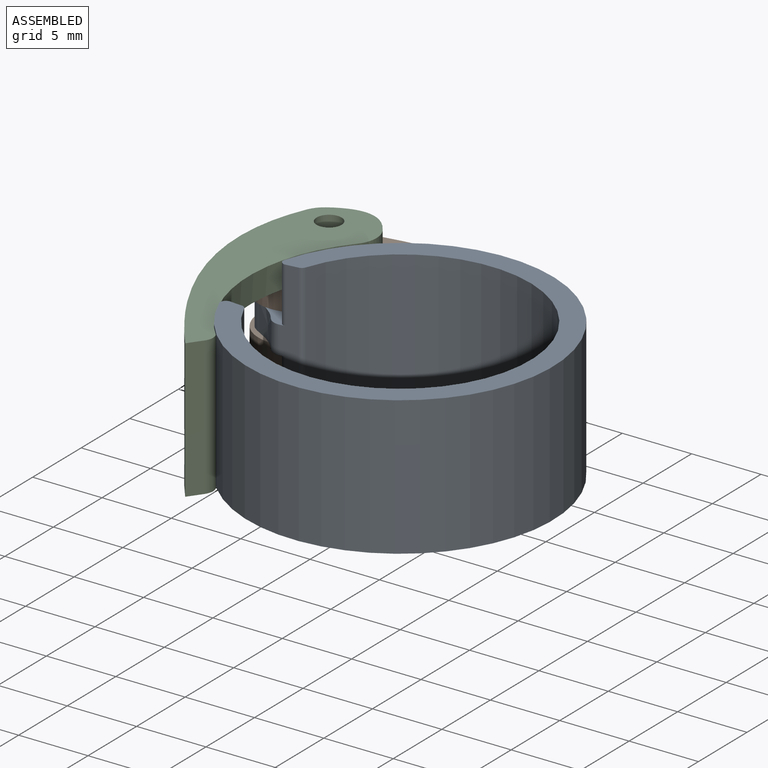
[diagram: assembled view]
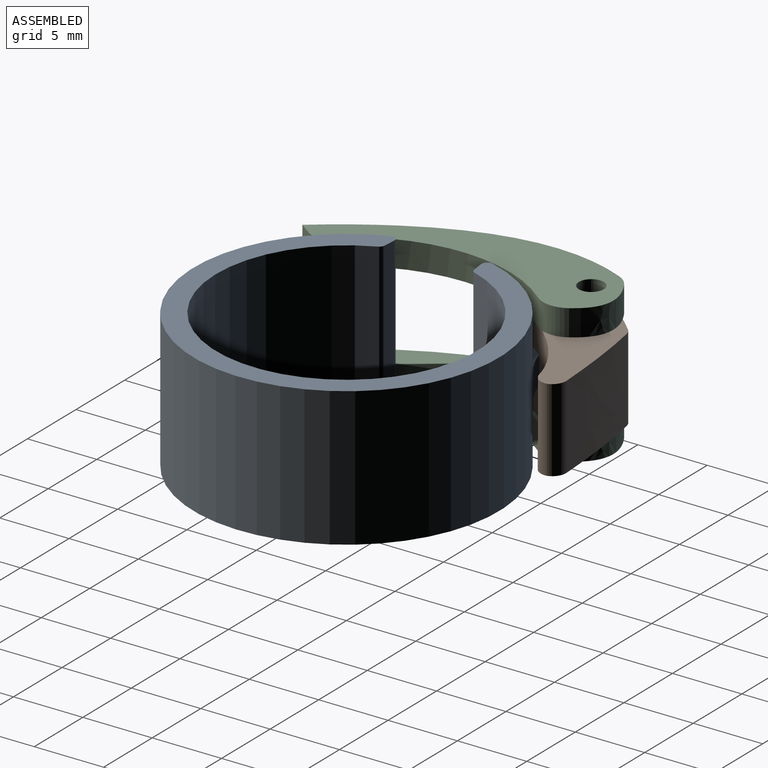
[diagram: assembled view, second angle]
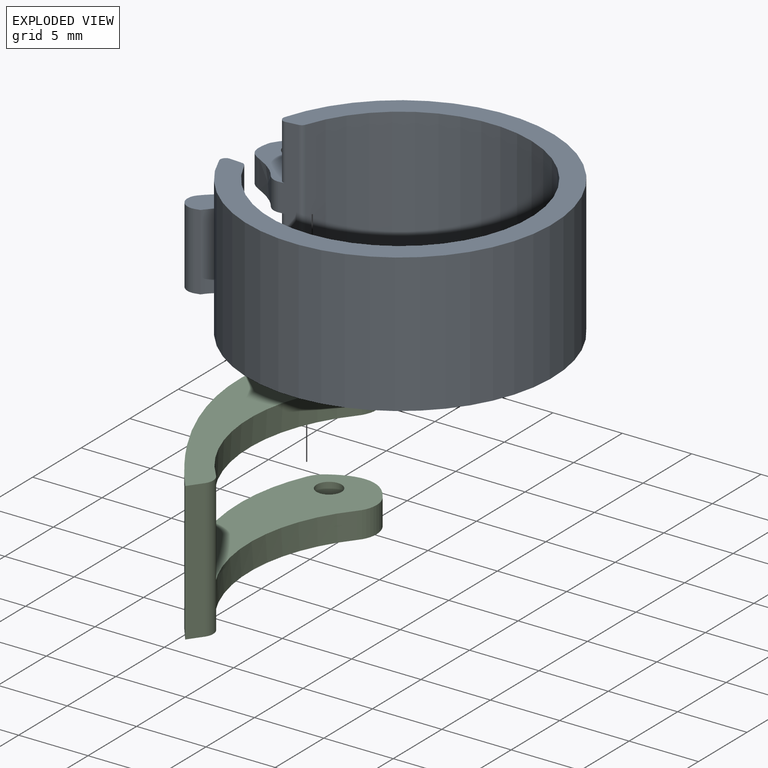
[diagram: exploded view]
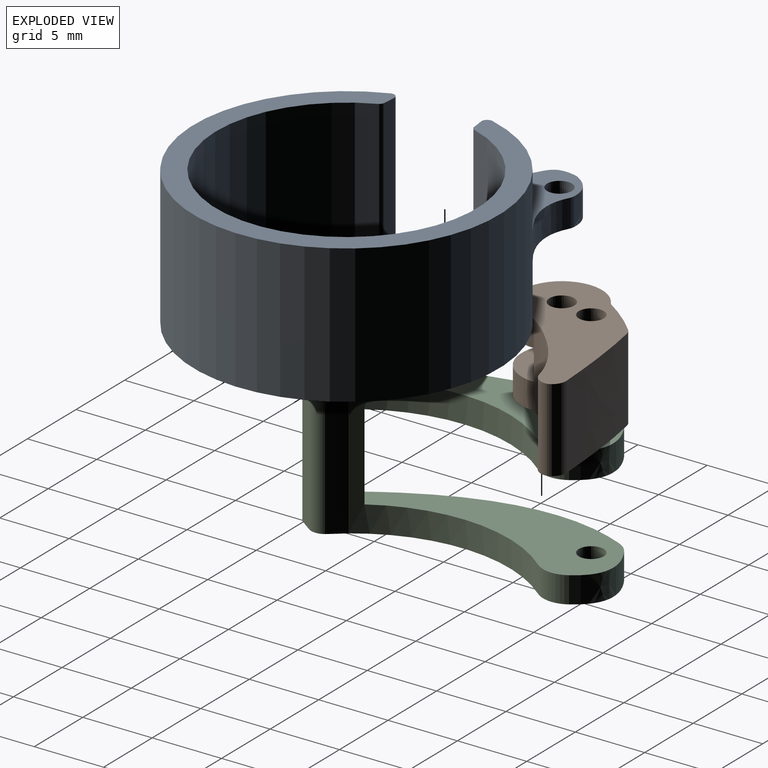
[diagram: exploded view, second angle]
ASSEMBLY  parts=3 mates=2
PART A: 29 faces, bbox 25.3x22x10 mm
  f0: plane 10x0.89mm, normal (0.07,1,0), area 8.9mm2, adj f5,f6,f25,f28
  f1: cylinder r=11mm len=22mm, axis (0,0,1), area 593mm2, adj f5,f6,f7,f11,f12,f13,f19,f20
  f2: cylinder r=1mm len=2mm, axis (0,0,1), area 2.2mm2, adj f3,f17,f19,f20
  f3: plane 10x1.25mm, normal (0.12,-0.99,0), area 9.6mm2, adj f2,f5,f6,f19,f20,f24,f26,f27
  f4: cylinder r=9.4mm len=18.8mm, axis (0,0,1), area 521.3mm2, adj f5,f6,f27,f28
  f5: plane 22x21.56mm, normal (0,0,-1), area 92.4mm2, adj f0,f1,f3,f4,f25,f26,f27,f28
  f6: plane 22x21.56mm, normal (0,0,1), area 92.4mm2, adj f0,f1,f3,f4,f24,f25,f27,f28
  f7: cylinder r=3mm len=5.5mm, axis (0,0,-1), area 4.6mm2, adj f1,f10,f11,f12
  f8: cylinder r=5mm len=5.5mm, axis (0,0,-1), area 7.3mm2, adj f9,f11,f12,f25
  f9: cylinder r=1mm len=5.5mm, axis (0,0,-1), area 13.7mm2, adj f8,f10,f11,f12
  f10: plane 5.5x0.36mm, normal (0.21,-0.98,0), area 2mm2, adj f7,f9,f11,f12
  f11: plane 2.53x2.13mm, normal (0,0,1), area 3.4mm2, adj f1,f7,f8,f9,f10,f25
  f12: plane 2.53x2.13mm, normal (0,0,-1), area 3.4mm2, adj f1,f7,f8,f9,f10,f25
  f13: extruded ~4.89x2mm, area 10.5mm2, adj f1,f19,f20,f21
  f14: extruded ~2.33x2mm, area 5.7mm2, adj f19,f20,f21,f22
  f15: extruded ~2x1.18mm, area 2.4mm2, adj f19,f20,f22,f23
  f16: cylinder r=2.5mm len=2mm, axis (0,0,-1), area 1.3mm2, adj f17,f19,f20,f23
  f17: extruded ~2x1.92mm, area 5mm2, adj f2,f16,f19,f20
  f18: cylinder r=0.9mm len=2mm, axis (0,0,-1), area 11.3mm2, adj f19,f20
  f19: plane 7.87x6.35mm, normal (0,0,1), area 17.6mm2, adj f1,f2,f3,f13,f14,f15,f16,f17
  f20: plane 7.87x6.35mm, normal (0,0,-1), area 17.6mm2, adj f1,f2,f3,f13,f14,f15,f16,f17
  f21: cylinder r=1mm len=2mm, axis (0,0,-1), area 0.8mm2, adj f13,f14,f19,f20
  f22: cylinder r=1mm len=2mm, axis (0,0,-1), area 0.6mm2, adj f14,f15,f19,f20
  f23: cylinder r=1mm len=2mm, axis (0,0,-1), area 1.2mm2, adj f15,f16,f19,f20
  f24: cylinder r=0.4mm len=4mm, axis (0,0,1), area 3.2mm2, adj f1,f3,f6,f19
  f25: cylinder r=0.4mm len=10mm, axis (0,0,1), area 7.7mm2, adj f0,f1,f5,f6,f8,f11,f12
  f26: cylinder r=0.4mm len=4mm, axis (0,0,1), area 3.2mm2, adj f1,f3,f5,f20
  f27: cylinder r=0.4mm len=10mm, axis (0,0,1), area 4.5mm2, adj f3,f4,f5,f6
  f28: cylinder r=0.4mm len=10mm, axis (0,0,1), area 4.3mm2, adj f0,f4,f5,f6
PART B: 18 faces, bbox 13x9.2x6 mm
  f0: cylinder r=2.9mm len=5.8mm, axis (0,0,-1), area 23.1mm2, adj f2,f4,f10,f14
  f1: cylinder r=0.9mm len=1.9mm, axis (0,0,-1), area 10.7mm2, adj f10,f14
  f2: cylinder r=16.5mm len=6mm, axis (0,0,-1), area 22.5mm2, adj f0,f3,f9,f10,f12,f17
  f3: cylinder r=2.9mm len=5.8mm, axis (0,0,-1), area 23.1mm2, adj f2,f4,f9,f13
  f4: cylinder r=11.5mm len=6mm, axis (0,0,-1), area 11.5mm2, adj f0,f3,f5,f9,f10,f11
  f5: extruded ~6x5.13mm, area 36.3mm2, adj f4,f9,f10,f16
  f6: extruded ~7.45x6mm, area 44.9mm2, adj f9,f10,f15,f17
  f7: cylinder r=0.9mm len=6mm, axis (0,0,-1), area 26.5mm2, adj f9,f10,f11,f12,f13,f14
  f8: cylinder r=0.9mm len=1.9mm, axis (0,0,-1), area 10.7mm2, adj f9,f13
  f9: plane 12.97x9.17mm, normal (0,0,1), area 53.6mm2, adj f2,f3,f4,f5,f6,f7,f8,f15
  f10: plane 12.97x9.17mm, normal (0,0,-1), area 53.6mm2, adj f0,f1,f2,f4,f5,f6,f7,f15
  f11: cylinder r=2.9mm len=2.6mm, axis (0,0,-1), area 6.9mm2, adj f4,f7,f13,f14
  f12: cylinder r=2.9mm len=2.2mm, axis (0,0,-1), area 2.6mm2, adj f2,f7,f13,f14
  f13: plane 5.8x5.79mm, normal (0,0,-1), area 22mm2, adj f3,f7,f8,f11,f12
  f14: plane 5.8x5.79mm, normal (0,0,1), area 22mm2, adj f0,f1,f7,f11,f12
  f15: cylinder r=1mm len=6mm, axis (0,0,-1), area 8.1mm2, adj f6,f9,f10,f16
  f16: cylinder r=1mm len=6mm, axis (0,0,-1), area 8.8mm2, adj f5,f9,f10,f15
  f17: cylinder r=1mm len=6mm, axis (0,0,-1), area 3.4mm2, adj f2,f6,f9,f10
PART C: 19 faces, bbox 7.7x21.6x10 mm
  f0: extruded ~17.1x3.92mm, area 34.4mm2, adj f2,f8,f15,f18
  f1: extruded ~4.57x1.9mm, area 10.2mm2, adj f2,f4,f15,f18
  f2: cylinder r=2mm len=1.9mm, axis (0,0,-1), area 2.3mm2, adj f0,f1,f15,f18
  f3: cylinder r=11.4mm len=15mm, axis (0,0,-1), area 75.8mm2, adj f4,f10,f11,f14,f15,f16,f17,f18
  f4: cylinder r=2mm len=2.34mm, axis (0,0,-1), area 4.8mm2, adj f1,f3,f15,f18
  f5: cylinder r=0.9mm len=1.9mm, axis (0,0,-1), area 10.7mm2, adj f15,f18
  f6: cylinder r=2mm len=1.9mm, axis (0,0,-1), area 2.3mm2, adj f7,f13,f14,f17
  f7: extruded ~17.1x3.92mm, area 34.4mm2, adj f6,f8,f14,f17
  f8: extruded ~10x2.47mm, area 30mm2, adj f0,f7,f9,f14,f15,f16
  f9: plane 10x0.97mm, normal (0.79,-0.61,0), area 12.2mm2, adj f8,f10,f14,f15
  f10: cylinder r=1mm len=10mm, axis (0,0,-1), area 13.6mm2, adj f3,f9,f14,f15
  f11: cylinder r=2mm len=2.34mm, axis (0,0,-1), area 4.8mm2, adj f3,f13,f14,f17
  f12: cylinder r=0.9mm len=1.9mm, axis (0,0,-1), area 10.7mm2, adj f14,f17
  f13: extruded ~4.57x1.9mm, area 10.2mm2, adj f6,f11,f14,f17
  f14: plane 21.56x7.7mm, normal (0,0,1), area 70.2mm2, adj f3,f6,f7,f8,f9,f10,f11,f12
  f15: plane 21.56x7.7mm, normal (0,0,-1), area 70.2mm2, adj f0,f1,f2,f3,f4,f5,f8,f9
  f16: extruded ~6.2x1.56mm, area 11.9mm2, adj f3,f8,f17,f18
  f17: plane 19.09x7.7mm, normal (0,0,-1), area 64.7mm2, adj f3,f6,f7,f11,f12,f13,f16
  f18: plane 19.09x7.7mm, normal (0,0,1), area 64.7mm2, adj f0,f1,f2,f3,f4,f5,f16
PLACE A at identity fixed
PLACE B rot(axis=(0,0,1),1.9deg) t=(0.26,0.6,-0.1)mm
PLACE C rot(axis=(0,0,1),1.4deg) t=(0.18,0.5,-0.2)mm
MATE revolute C.f5 <-> B.f7  axis (0,0,-1) through (-11.73,9.44,2.9)mm
MATE revolute B.f13 <-> A.f16  axis (0,0,-1) through (-12.24,6.79,1)mm
